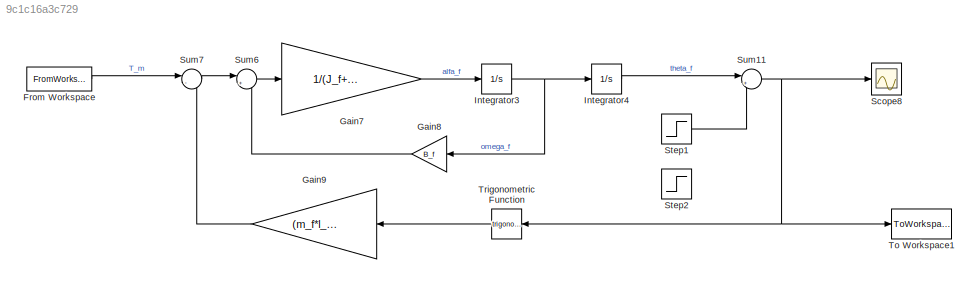
MODEL slx_9c1c16a3c729
KIND model
CONFIG AbsTol = auto
CONFIG FixedStep = auto
CONFIG MaxStep = auto
CONFIG MinStep = auto
CONFIG RelTol = 1e-3
CONFIG SampleTimeConstraint = Unconstrained
CONFIG Solver = ode45
CONFIG SolverMode = Auto
CONFIG SolverName = ode45
CONFIG StartTime = 0.0
CONFIG StopTime = 5
BLOCK [FromWorkspace] From Workspace
  SampleTime = 0.01
  VariableName = uin
  ZeroCross = on
BLOCK [Gain] Gain7
  Gain = 1/(J_f+J_w+m_w*l_w^2)
  OutDataTypeStr = Inherit: Inherit via internal rule
  ParamDataTypeStr = Inherit: Inherit via internal rule
  SaturateOnIntegerOverflow = off
BLOCK [Gain] Gain8
  Gain = B_f
  OutDataTypeStr = Inherit: Inherit via internal rule
  ParamDataTypeStr = Inherit: Inherit via internal rule
  SaturateOnIntegerOverflow = off
BLOCK [Gain] Gain9
  Gain = (m_f*l_f+m_w*l_w)*g
  OutDataTypeStr = Inherit: Inherit via internal rule
  ParamDataTypeStr = Inherit: Inherit via internal rule
  SaturateOnIntegerOverflow = off
BLOCK [Integrator] Integrator3
  Ports = [1, 1]
BLOCK [Integrator] Integrator4
  Ports = [1, 1]
BLOCK [Scope] Scope8
  Ports = [1]
  ScopeSpecificationString = C++SS(StrPVP('Location','[10, 60, 1606, 880]'),StrPVP('Open','off'),MxPVP('AxesTitles',24,'struct(''axes1'',''%<SignalLabel>'')'),MxPVP('ScopeGraphics',28,'struct(''FigureColor'',''[0.156862745098039 0.156862745098039 0.156862745098039]'',''AxesColor'',''[0 0 0]'',''AxesTickColor'',''[0.686274509803922 0.686274509803922 0.686274509803922]'',''LineColors'',''[1 1 0;1 0 1;0 1 1;1 0 0;0 1 0;0 0 1]'',...<+338ch>
BLOCK [Step] Step1
  After = 0.1286
  SampleTime = 0
  Time = 0
BLOCK [Step] Step2
  After = -0.09023
  SampleTime = 0
  Time = 0
BLOCK [Sum] Sum11
  IconShape = round
  InputSameDT = off
  Inputs = |++
  OutDataTypeStr = Inherit: Inherit via internal rule
  Ports = [2, 1]
  SaturateOnIntegerOverflow = off
BLOCK [Sum] Sum6
  IconShape = round
  InputSameDT = off
  Inputs = |+-
  OutDataTypeStr = Inherit: Inherit via internal rule
  Ports = [2, 1]
  SaturateOnIntegerOverflow = off
BLOCK [Sum] Sum7
  IconShape = round
  InputSameDT = off
  Inputs = |--
  OutDataTypeStr = Inherit: Inherit via internal rule
  Ports = [2, 1]
  SaturateOnIntegerOverflow = off
BLOCK [ToWorkspace] To Workspace1
  FixptAsFi = on
  MaxDataPoints = 2000
  Ports = [1]
  SampleTime = 0.0025
  Save2DSignal = 3-D array (concatenate along third dimension)
  VariableName = output
BLOCK [Trigonometry] Trigonometric Function
  Ports = [1, 1]
LINE From Workspace:1 -> Sum7:1
LINE Gain7:1 -> Integrator3:1
LINE Gain8:1 -> Sum6:2
LINE Gain9:1 -> Sum7:2
NET Integrator3:1 -> Gain8:1, Integrator4:1
LINE Integrator4:1 -> Sum11:1
LINE Step1:1 -> Sum11:2
NET Sum11:1 -> Scope8:1, To Workspace1:1, Trigonometric Function:1
LINE Sum6:1 -> Gain7:1
LINE Sum7:1 -> Sum6:1
LINE Trigonometric Function:1 -> Gain9:1
note: NET lines group one-source signal fan-out (src -> all destinations, sorted); 1:1 wires keep LINE
